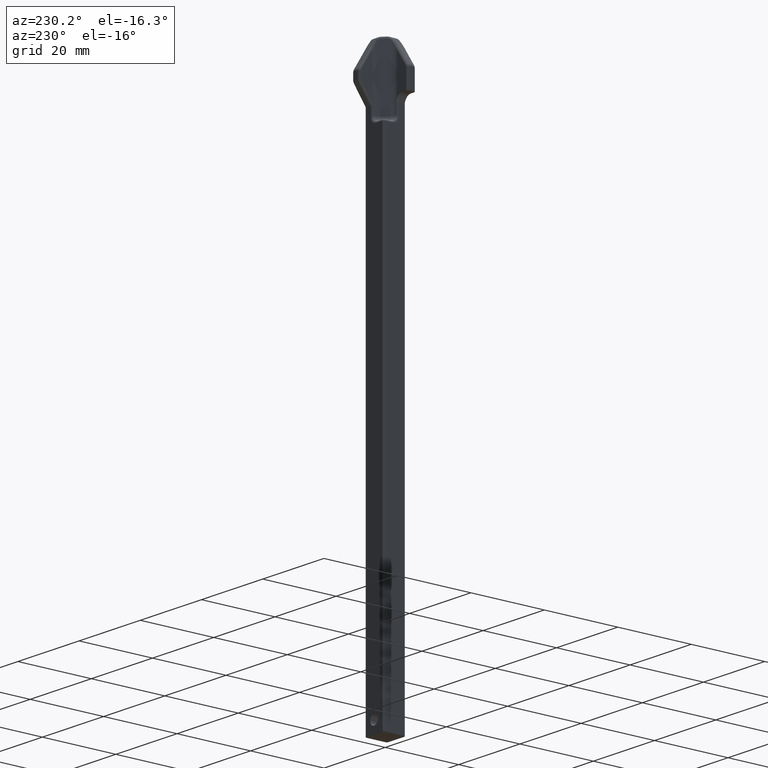
[diagram: clean part render]
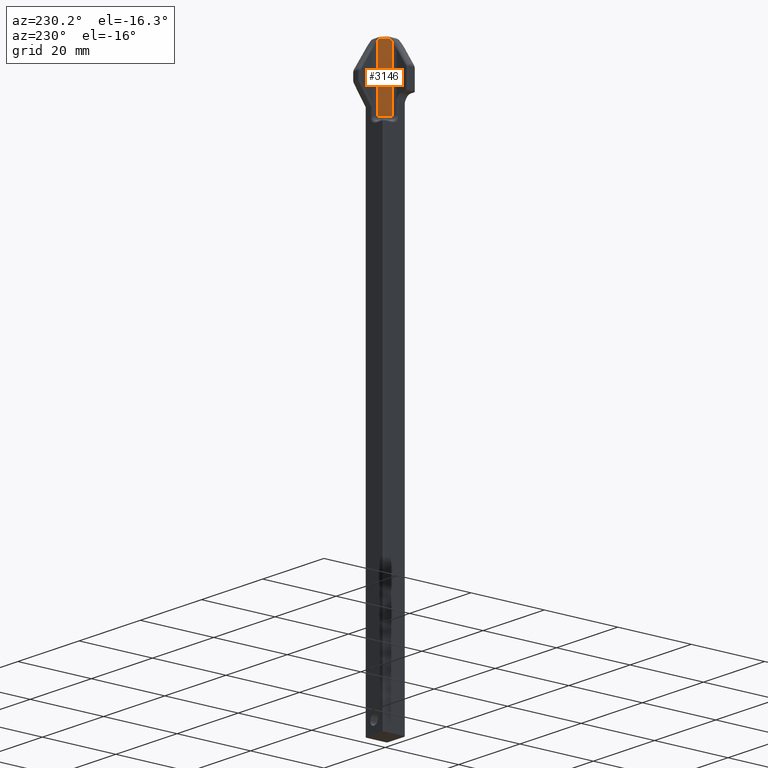
[diagram: same view with one face highlighted and labeled with its STEP entity id]
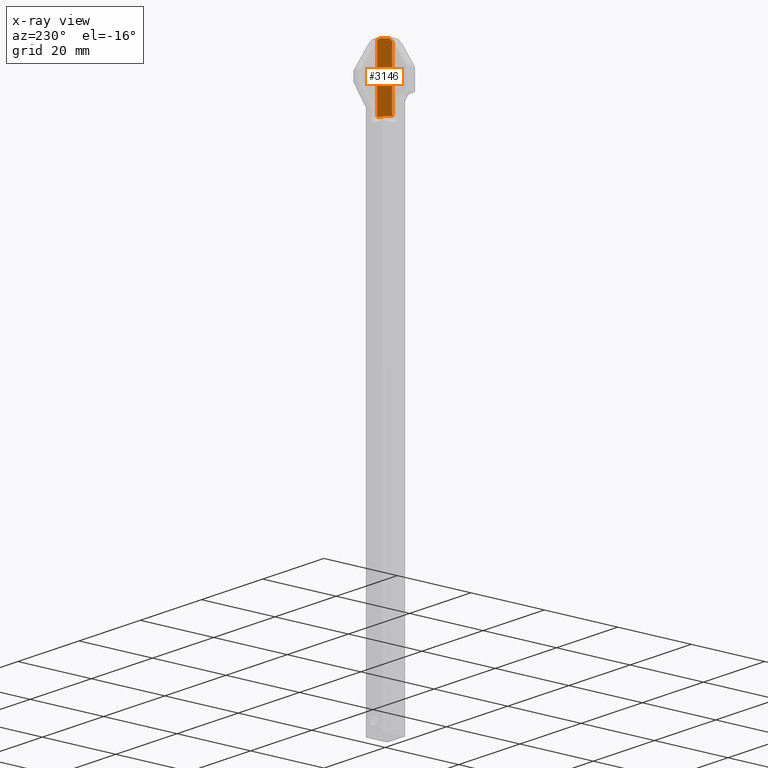
[diagram: x-ray of the same camera — body ghosted, the highlighted face saturated]
A machine part, auxiliary view. The second image highlights one B-rep face of the part: STEP entity #3146.
The next image is the same camera in x-ray: the body ghosted, the highlighted face saturated — about 0% of this face is hidden behind the body in this view.
In plain terms, the highlighted planar face has unit normal (-0.7071, 0.7071, 0).
Its self-contained STEP definition (entity closure, byte-faithful):
#910=CARTESIAN_POINT('',(-7.712225703188E-2,-1.136132864269E-2,
2.192203289489E0));
#927=DIRECTION('',(-1.458437275464E-6,-1.461958216814E-6,9.999999999979E-1));
#928=VECTOR('',#927,6.422032894904E-1);
#929=CARTESIAN_POINT('',(-7.712132041866E-2,-1.136038976831E-2,1.55E0));
#930=LINE('',#929,#928);
#967=DIRECTION('',(-4.975384671123E-1,-4.975385526686E-1,-7.105708003795E-1));
#968=VECTOR('',#967,2.630935973121E-2);
#969=CARTESIAN_POINT('',(-6.403233852051E-2,1.728592119614E-3,
2.210897952291E0));
#970=LINE('',#969,#968);
#971=DIRECTION('',(-7.071067811865E-1,-7.071067811865E-1,0.E0));
#972=VECTOR('',#971,1.251320344799E-1);
#973=CARTESIAN_POINT('',(1.136038970574E-2,7.712132035609E-2,1.55E0));
#974=LINE('',#973,#972);
#975=DIRECTION('',(-5.536013254154E-7,-5.950794240728E-7,9.999999999997E-1));
#976=VECTOR('',#975,6.522291579223E-1);
#977=CARTESIAN_POINT('',(1.136038970574E-2,7.712132035609E-2,1.55E0));
#978=LINE('',#977,#976);
#979=DIRECTION('',(-4.682434764279E-1,-4.682409015900E-1,7.493320391261E-1));
#980=VECTOR('',#979,1.046172816451E-2);
#981=CARTESIAN_POINT('',(1.136002863082E-2,7.712093222794E-2,2.202229157922E0));
#982=LINE('',#981,#980);
#983=CARTESIAN_POINT('',(6.461392665620E-3,7.22223232E-2,2.210068466020E0));
#984=CARTESIAN_POINT('',(5.347181269571E-3,7.110811180397E-2,2.211853379601E0));
#985=CARTESIAN_POINT('',(2.677860627890E-3,6.843879133184E-2,2.214921946252E0));
#986=CARTESIAN_POINT('',(-3.126638564227E-3,6.263429207244E-2,
2.218243226714E0));
#987=CARTESIAN_POINT('',(-7.368382090168E-3,5.839254855636E-2,
2.219000248062E0));
#988=CARTESIAN_POINT('',(-9.651521217415E-3,5.610940942912E-2,2.219E0));
#990=DIRECTION('',(-7.071067812212E-1,-7.071067811519E-1,0.E0));
#991=VECTOR('',#990,5.489542668459E-2);
#992=CARTESIAN_POINT('',(-9.651521217415E-3,5.610940942912E-2,2.219E0));
#993=LINE('',#992,#991);
#994=CARTESIAN_POINT('',(-4.846844968412E-2,1.729248096621E-2,2.219E0));
#995=CARTESIAN_POINT('',(-4.993509710330E-2,1.582583354703E-2,
2.219000160181E0));
#996=CARTESIAN_POINT('',(-5.282656735486E-2,1.293436329586E-2,
2.218675678275E0));
#997=CARTESIAN_POINT('',(-5.723021627994E-2,8.530714369131E-3,
2.217080968620E0));
#998=CARTESIAN_POINT('',(-6.112519446548E-2,4.635736189620E-3,
2.214417764117E0));
#999=CARTESIAN_POINT('',(-6.314651366281E-2,2.614416977308E-3,
2.212164522876E0));
#1000=CARTESIAN_POINT('',(-6.403233852051E-2,1.728592119614E-3,
2.210897952291E0));
#1157=CARTESIAN_POINT('',(1.136038970574E-2,7.712132035609E-2,1.55E0));
#1158=CARTESIAN_POINT('',(-7.712132041866E-2,-1.136038976831E-2,1.55E0));
#1159=VERTEX_POINT('',#1157);
#1160=VERTEX_POINT('',#1158);
#1301=VERTEX_POINT('',#910);
#1304=CARTESIAN_POINT('',(-6.403233852051E-2,1.728592119614E-3,
2.210897952291E0));
#1305=VERTEX_POINT('',#1304);
#1307=VERTEX_POINT('',#994);
#1310=CARTESIAN_POINT('',(-9.651521217415E-3,5.610940942912E-2,2.219E0));
#1311=VERTEX_POINT('',#1310);
#1313=VERTEX_POINT('',#983);
#1316=CARTESIAN_POINT('',(1.136002863082E-2,7.712093222794E-2,
2.202229157922E0));
#1317=VERTEX_POINT('',#1316);
#3131=CARTESIAN_POINT('',(1.136038969321E-2,7.712132034356E-2,1.5E0));
#3132=DIRECTION('',(-7.071067811865E-1,7.071067811865E-1,0.E0));
#3133=DIRECTION('',(-7.071067811865E-1,-7.071067811865E-1,0.E0));
#3134=AXIS2_PLACEMENT_3D('',#3131,#3132,#3133);
#3135=PLANE('',#3134);
#3136=ORIENTED_EDGE('',*,*,#2933,.T.);
#3137=ORIENTED_EDGE('',*,*,#3087,.F.);
#3138=ORIENTED_EDGE('',*,*,#3123,.F.);
#3139=ORIENTED_EDGE('',*,*,#2751,.T.);
#3140=ORIENTED_EDGE('',*,*,#2825,.T.);
#3141=ORIENTED_EDGE('',*,*,#2863,.T.);
#3142=ORIENTED_EDGE('',*,*,#2877,.T.);
#3143=ORIENTED_EDGE('',*,*,#2919,.T.);
#3144=EDGE_LOOP('',(#3136,#3137,#3138,#3139,#3140,#3141,#3142,#3143));
#3145=FACE_OUTER_BOUND('',#3144,.F.);
#3146=ADVANCED_FACE('',(#3145),#3135,.T.);
#989=B_SPLINE_CURVE_WITH_KNOTS('',3,(#983,#984,#985,#986,#987,#988),
.UNSPECIFIED.,.F.,.F.,(4,1,1,4),(0.E0,3.333333333333E-1,6.666666666667E-1,1.E0),
.UNSPECIFIED.);
#1001=B_SPLINE_CURVE_WITH_KNOTS('',3,(#994,#995,#996,#997,#998,#999,#1000),
.UNSPECIFIED.,.F.,.F.,(4,1,1,1,4),(0.E0,2.5E-1,5.E-1,7.5E-1,1.E0),
.UNSPECIFIED.);
#2751=EDGE_CURVE('',#1159,#1317,#978,.T.);
#2825=EDGE_CURVE('',#1317,#1313,#982,.T.);
#2863=EDGE_CURVE('',#1313,#1311,#989,.T.);
#2877=EDGE_CURVE('',#1311,#1307,#993,.T.);
#2919=EDGE_CURVE('',#1307,#1305,#1001,.T.);
#2933=EDGE_CURVE('',#1305,#1301,#970,.T.);
#3087=EDGE_CURVE('',#1160,#1301,#930,.T.);
#3123=EDGE_CURVE('',#1159,#1160,#974,.T.);